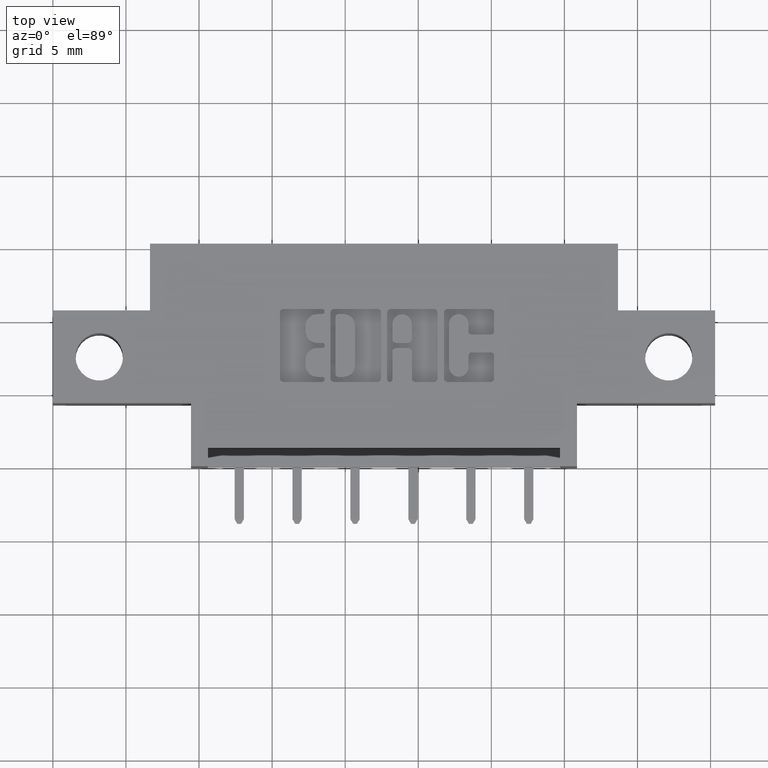
[diagram: clean part render]
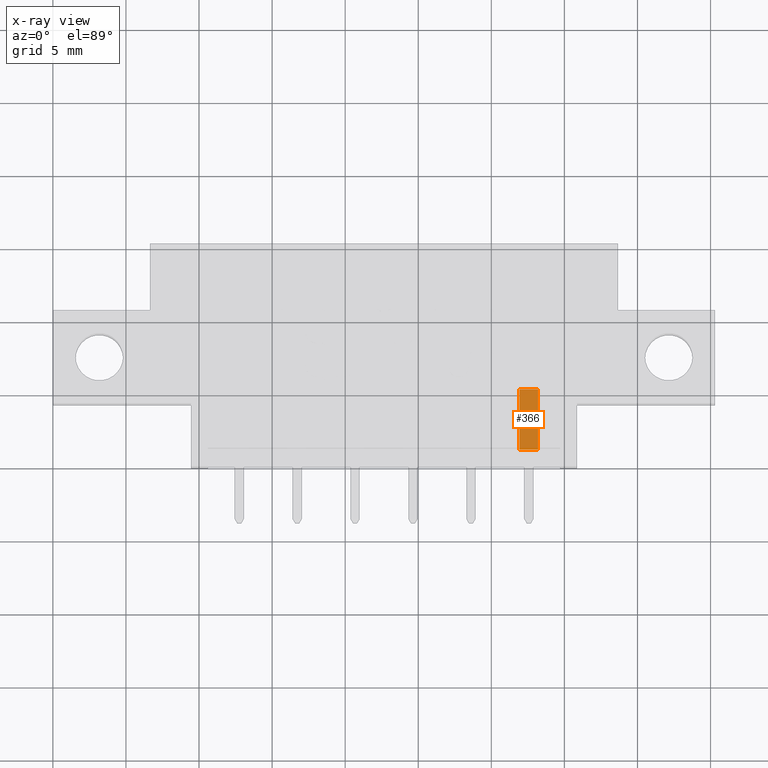
[diagram: x-ray — body ghosted, one internal face saturated and labeled with its STEP entity id]
A machine part, top view, then the same camera in x-ray: the body is ghosted and one INTERNAL B-rep face — a face not visible from any outside direction — is saturated and labeled: STEP entity #366.
In plain terms, the highlighted planar face has unit normal (0, -0, 1).
Its self-contained STEP definition (entity closure, byte-faithful):
#366 = ADVANCED_FACE ( 'NONE', ( #8452 ), #1625, .F. ) ;
#687 = LINE ( 'NONE', #1373, #3126 ) ;
#1373 = CARTESIAN_POINT ( 'NONE',  ( 1.256999999999999700, 0.2119999999999999400, -0.2724999999999999600 ) ) ;
#1462 = DIRECTION ( 'NONE',  ( 0.0000000000000000000, -3.221518860453141400E-016, 1.000000000000000000 ) ) ;
#1625 = PLANE ( 'NONE',  #2768 ) ;
#1782 = VERTEX_POINT ( 'NONE', #2893 ) ;
#1829 = DIRECTION ( 'NONE',  ( 0.0000000000000000000, -1.000000000000000000, -3.221518860453141400E-016 ) ) ;
#2180 = CARTESIAN_POINT ( 'NONE',  ( 1.256999999999999700, 0.2119999999999999400, -0.2724999999999999600 ) ) ;
#2552 = VERTEX_POINT ( 'NONE', #4153 ) ;
#2768 = AXIS2_PLACEMENT_3D ( 'NONE', #2180, #1462, #3039 ) ;
#2893 = CARTESIAN_POINT ( 'NONE',  ( 1.306999999999999700, 0.2119999999999999400, -0.2724999999999999600 ) ) ;
#3039 = DIRECTION ( 'NONE',  ( 0.0000000000000000000, -1.000000000000000000, -3.221518860453141400E-016 ) ) ;
#3098 = VERTEX_POINT ( 'NONE', #6534 ) ;
#3126 = VECTOR ( 'NONE', #4714, 39.37007874015748100 ) ;
#3335 = VECTOR ( 'NONE', #6574, 39.37007874015748100 ) ;
#3336 = ORIENTED_EDGE ( 'NONE', *, *, #6037, .T. ) ;
#3711 = EDGE_LOOP ( 'NONE', ( #5085, #3336, #5388, #5094 ) ) ;
#4073 = VECTOR ( 'NONE', #4130, 39.37007874015748100 ) ;
#4130 = DIRECTION ( 'NONE',  ( 1.000000000000000000, 0.0000000000000000000, 0.0000000000000000000 ) ) ;
#4153 = CARTESIAN_POINT ( 'NONE',  ( 1.306999999999999700, 0.05000000000000001000, -0.2725000000000000200 ) ) ;
#4705 = EDGE_CURVE ( 'NONE', #3098, #2552, #7464, .T. ) ;
#4714 = DIRECTION ( 'NONE',  ( 1.000000000000000000, -0.0000000000000000000, -0.0000000000000000000 ) ) ;
#4781 = EDGE_CURVE ( 'NONE', #6063, #3098, #7061, .T. ) ;
#5085 = ORIENTED_EDGE ( 'NONE', *, *, #4781, .F. ) ;
#5094 = ORIENTED_EDGE ( 'NONE', *, *, #4705, .F. ) ;
#5122 = VECTOR ( 'NONE', #1829, 39.37007874015748100 ) ;
#5388 = ORIENTED_EDGE ( 'NONE', *, *, #5919, .T. ) ;
#5919 = EDGE_CURVE ( 'NONE', #1782, #2552, #6752, .T. ) ;
#6037 = EDGE_CURVE ( 'NONE', #6063, #1782, #687, .T. ) ;
#6063 = VERTEX_POINT ( 'NONE', #6785 ) ;
#6119 = CARTESIAN_POINT ( 'NONE',  ( 1.366499999999999800, 0.05000000000000000300, -0.2725000000000000200 ) ) ;
#6534 = CARTESIAN_POINT ( 'NONE',  ( 1.256999999999999700, 0.05000000000000001000, -0.2725000000000000200 ) ) ;
#6574 = DIRECTION ( 'NONE',  ( 0.0000000000000000000, -1.000000000000000000, -3.221518860453141400E-016 ) ) ;
#6623 = CARTESIAN_POINT ( 'NONE',  ( 1.306999999999999700, 0.2119999999999999400, -0.2724999999999999600 ) ) ;
#6752 = LINE ( 'NONE', #6623, #3335 ) ;
#6785 = CARTESIAN_POINT ( 'NONE',  ( 1.256999999999999700, 0.2119999999999999400, -0.2724999999999999600 ) ) ;
#7061 = LINE ( 'NONE', #7730, #5122 ) ;
#7464 = LINE ( 'NONE', #6119, #4073 ) ;
#7730 = CARTESIAN_POINT ( 'NONE',  ( 1.256999999999999700, 0.2119999999999999400, -0.2724999999999999600 ) ) ;
#8452 = FACE_OUTER_BOUND ( 'NONE', #3711, .T. ) ;